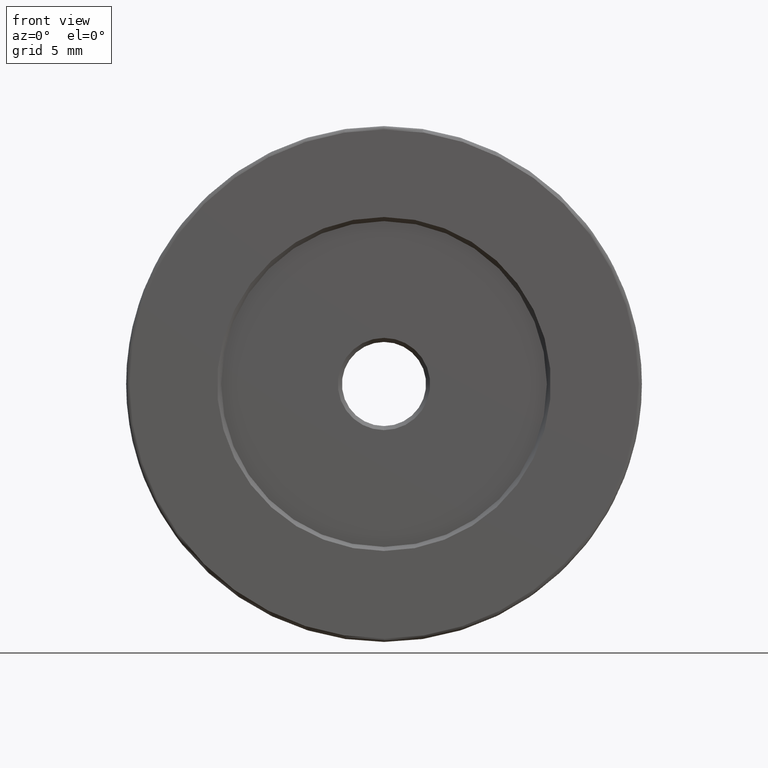
[diagram: clean part render]
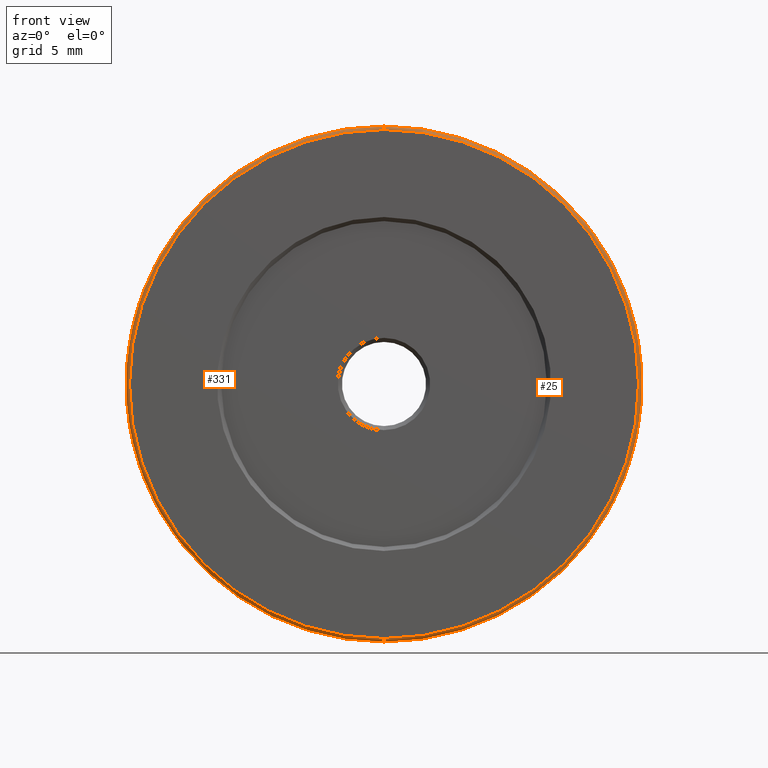
[diagram: same view with one multi-face feature highlighted, each face labeled with its STEP entity id]
A machine part, front view. The highlighted faces form ONE feature: a constant-radius fillet chain: 2 tangent blend faces with common blend radius 0.25 mm. The faces share edges in the B-rep.
Their STEP definitions:
[1] entity #331 (Torus):
#14 = ORIENTED_EDGE ( 'NONE', *, *, #178, .F. ) ;
#19 = CARTESIAN_POINT ( 'NONE',  ( -7.546808913101048510, -4.893595127302727832, 38.00000000000000000 ) ) ;
#29 = CARTESIAN_POINT ( 'NONE',  ( -7.546808913101048510, -4.643595127302727832, 38.00000000000000000 ) ) ;
#39 = DIRECTION ( 'NONE',  ( 0.000000000000000000, 1.000000000000000000, 0.000000000000000000 ) ) ;
#43 = FACE_OUTER_BOUND ( 'NONE', #451, .T. ) ;
#46 = TOROIDAL_SURFACE ( 'NONE', #612, 18.75000000000000000, 0.2500000000000000000 ) ;
#51 = CARTESIAN_POINT ( 'NONE',  ( -7.546808913101045846, -4.643595127302727832, 56.99999999999999289 ) ) ;
#60 = CARTESIAN_POINT ( 'NONE',  ( -7.546808913101048510, -4.643595127302727832, 56.74999999999999289 ) ) ;
#76 = DIRECTION ( 'NONE',  ( 0.000000000000000000, 0.000000000000000000, 1.000000000000000000 ) ) ;
#81 = DIRECTION ( 'NONE',  ( 0.000000000000000000, 0.000000000000000000, 1.000000000000000000 ) ) ;
#90 = CARTESIAN_POINT ( 'NONE',  ( -7.546808913101048510, -4.643595127302727832, 19.00000000000000000 ) ) ;
#113 = EDGE_CURVE ( 'NONE', #125, #439, #570, .T. ) ;
#125 = VERTEX_POINT ( 'NONE', #477 ) ;
#136 = EDGE_CURVE ( 'NONE', #604, #558, #468, .T. ) ;
#178 = EDGE_CURVE ( 'NONE', #439, #558, #589, .T. ) ;
#205 = CARTESIAN_POINT ( 'NONE',  ( -7.546808913101048510, -4.893595127302727832, 56.74999999999999289 ) ) ;
#212 = AXIS2_PLACEMENT_3D ( 'NONE', #394, #582, #523 ) ;
#227 = DIRECTION ( 'NONE',  ( 0.000000000000000000, 0.000000000000000000, 1.000000000000000000 ) ) ;
#236 = ORIENTED_EDGE ( 'NONE', *, *, #113, .F. ) ;
#249 = ORIENTED_EDGE ( 'NONE', *, *, #263, .F. ) ;
#262 = DIRECTION ( 'NONE',  ( -0.000000000000000000, -1.000000000000000000, -0.000000000000000000 ) ) ;
#263 = EDGE_CURVE ( 'NONE', #604, #125, #516, .T. ) ;
#266 = AXIS2_PLACEMENT_3D ( 'NONE', #60, #438, #81 ) ;
#331 = ADVANCED_FACE ( 'NONE', ( #43 ), #46, .T. ) ;
#394 = CARTESIAN_POINT ( 'NONE',  ( -7.546808913101045846, -4.643595127302727832, 19.25000000000000000 ) ) ;
#399 = DIRECTION ( 'NONE',  ( 0.000000000000000000, 0.000000000000000000, 1.000000000000000000 ) ) ;
#415 = ORIENTED_EDGE ( 'NONE', *, *, #136, .T. ) ;
#438 = DIRECTION ( 'NONE',  ( -1.000000000000000000, 0.000000000000000000, 0.000000000000000000 ) ) ;
#439 = VERTEX_POINT ( 'NONE', #90 ) ;
#442 = DIRECTION ( 'NONE',  ( 0.000000000000000000, 1.000000000000000000, 0.000000000000000000 ) ) ;
#451 = EDGE_LOOP ( 'NONE', ( #236, #249, #415, #14 ) ) ;
#468 = CIRCLE ( 'NONE', #266, 0.2500000000000002220 ) ;
#477 = CARTESIAN_POINT ( 'NONE',  ( -7.546808913101045846, -4.893595127302727832, 19.25000000000000000 ) ) ;
#516 = CIRCLE ( 'NONE', #562, 18.74999999999999645 ) ;
#523 = DIRECTION ( 'NONE',  ( 0.000000000000000000, 0.000000000000000000, -1.000000000000000000 ) ) ;
#558 = VERTEX_POINT ( 'NONE', #51 ) ;
#562 = AXIS2_PLACEMENT_3D ( 'NONE', #19, #262, #399 ) ;
#570 = CIRCLE ( 'NONE', #212, 0.2500000000000002220 ) ;
#579 = AXIS2_PLACEMENT_3D ( 'NONE', #29, #442, #76 ) ;
#582 = DIRECTION ( 'NONE',  ( 1.000000000000000000, -0.000000000000000000, 1.224646799147353207E-16 ) ) ;
#589 = CIRCLE ( 'NONE', #579, 18.99999999999999645 ) ;
#604 = VERTEX_POINT ( 'NONE', #205 ) ;
#608 = CARTESIAN_POINT ( 'NONE',  ( -7.546808913101048510, -4.643595127302727832, 38.00000000000000000 ) ) ;
#612 = AXIS2_PLACEMENT_3D ( 'NONE', #608, #39, #227 ) ;
[2] entity #25 (Torus):
#25 = ADVANCED_FACE ( 'NONE', ( #333 ), #510, .T. ) ;
#28 = ORIENTED_EDGE ( 'NONE', *, *, #136, .F. ) ;
#49 = DIRECTION ( 'NONE',  ( 0.000000000000000000, 0.000000000000000000, 1.000000000000000000 ) ) ;
#51 = CARTESIAN_POINT ( 'NONE',  ( -7.546808913101045846, -4.643595127302727832, 56.99999999999999289 ) ) ;
#60 = CARTESIAN_POINT ( 'NONE',  ( -7.546808913101048510, -4.643595127302727832, 56.74999999999999289 ) ) ;
#81 = DIRECTION ( 'NONE',  ( 0.000000000000000000, 0.000000000000000000, 1.000000000000000000 ) ) ;
#90 = CARTESIAN_POINT ( 'NONE',  ( -7.546808913101048510, -4.643595127302727832, 19.00000000000000000 ) ) ;
#96 = AXIS2_PLACEMENT_3D ( 'NONE', #112, #494, #162 ) ;
#97 = EDGE_CURVE ( 'NONE', #125, #604, #600, .T. ) ;
#112 = CARTESIAN_POINT ( 'NONE',  ( -7.546808913101048510, -4.643595127302727832, 38.00000000000000000 ) ) ;
#113 = EDGE_CURVE ( 'NONE', #125, #439, #570, .T. ) ;
#125 = VERTEX_POINT ( 'NONE', #477 ) ;
#136 = EDGE_CURVE ( 'NONE', #604, #558, #468, .T. ) ;
#147 = EDGE_CURVE ( 'NONE', #558, #439, #224, .T. ) ;
#157 = ORIENTED_EDGE ( 'NONE', *, *, #113, .T. ) ;
#161 = AXIS2_PLACEMENT_3D ( 'NONE', #390, #520, #203 ) ;
#162 = DIRECTION ( 'NONE',  ( 0.000000000000000000, 0.000000000000000000, 1.000000000000000000 ) ) ;
#203 = DIRECTION ( 'NONE',  ( 0.000000000000000000, 0.000000000000000000, 1.000000000000000000 ) ) ;
#205 = CARTESIAN_POINT ( 'NONE',  ( -7.546808913101048510, -4.893595127302727832, 56.74999999999999289 ) ) ;
#212 = AXIS2_PLACEMENT_3D ( 'NONE', #394, #582, #523 ) ;
#224 = CIRCLE ( 'NONE', #96, 18.99999999999999645 ) ;
#254 = AXIS2_PLACEMENT_3D ( 'NONE', #290, #518, #49 ) ;
#266 = AXIS2_PLACEMENT_3D ( 'NONE', #60, #438, #81 ) ;
#290 = CARTESIAN_POINT ( 'NONE',  ( -7.546808913101048510, -4.643595127302727832, 38.00000000000000000 ) ) ;
#308 = ORIENTED_EDGE ( 'NONE', *, *, #97, .F. ) ;
#333 = FACE_OUTER_BOUND ( 'NONE', #430, .T. ) ;
#390 = CARTESIAN_POINT ( 'NONE',  ( -7.546808913101048510, -4.893595127302727832, 38.00000000000000000 ) ) ;
#394 = CARTESIAN_POINT ( 'NONE',  ( -7.546808913101045846, -4.643595127302727832, 19.25000000000000000 ) ) ;
#430 = EDGE_LOOP ( 'NONE', ( #308, #157, #574, #28 ) ) ;
#438 = DIRECTION ( 'NONE',  ( -1.000000000000000000, 0.000000000000000000, 0.000000000000000000 ) ) ;
#439 = VERTEX_POINT ( 'NONE', #90 ) ;
#468 = CIRCLE ( 'NONE', #266, 0.2500000000000002220 ) ;
#477 = CARTESIAN_POINT ( 'NONE',  ( -7.546808913101045846, -4.893595127302727832, 19.25000000000000000 ) ) ;
#494 = DIRECTION ( 'NONE',  ( 0.000000000000000000, 1.000000000000000000, 0.000000000000000000 ) ) ;
#510 = TOROIDAL_SURFACE ( 'NONE', #254, 18.75000000000000000, 0.2500000000000000000 ) ;
#518 = DIRECTION ( 'NONE',  ( 0.000000000000000000, 1.000000000000000000, 0.000000000000000000 ) ) ;
#520 = DIRECTION ( 'NONE',  ( -0.000000000000000000, -1.000000000000000000, -0.000000000000000000 ) ) ;
#523 = DIRECTION ( 'NONE',  ( 0.000000000000000000, 0.000000000000000000, -1.000000000000000000 ) ) ;
#558 = VERTEX_POINT ( 'NONE', #51 ) ;
#570 = CIRCLE ( 'NONE', #212, 0.2500000000000002220 ) ;
#574 = ORIENTED_EDGE ( 'NONE', *, *, #147, .F. ) ;
#582 = DIRECTION ( 'NONE',  ( 1.000000000000000000, -0.000000000000000000, 1.224646799147353207E-16 ) ) ;
#600 = CIRCLE ( 'NONE', #161, 18.74999999999999645 ) ;
#604 = VERTEX_POINT ( 'NONE', #205 ) ;